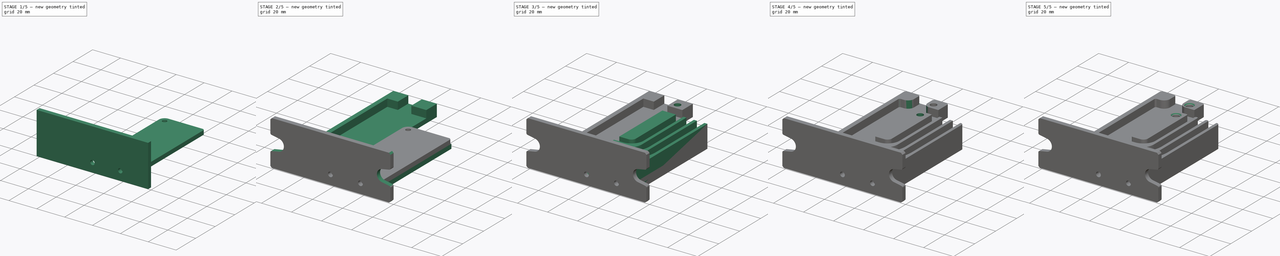
[diagram: build sequence overview — one tinted view per stage of 5, left to right]
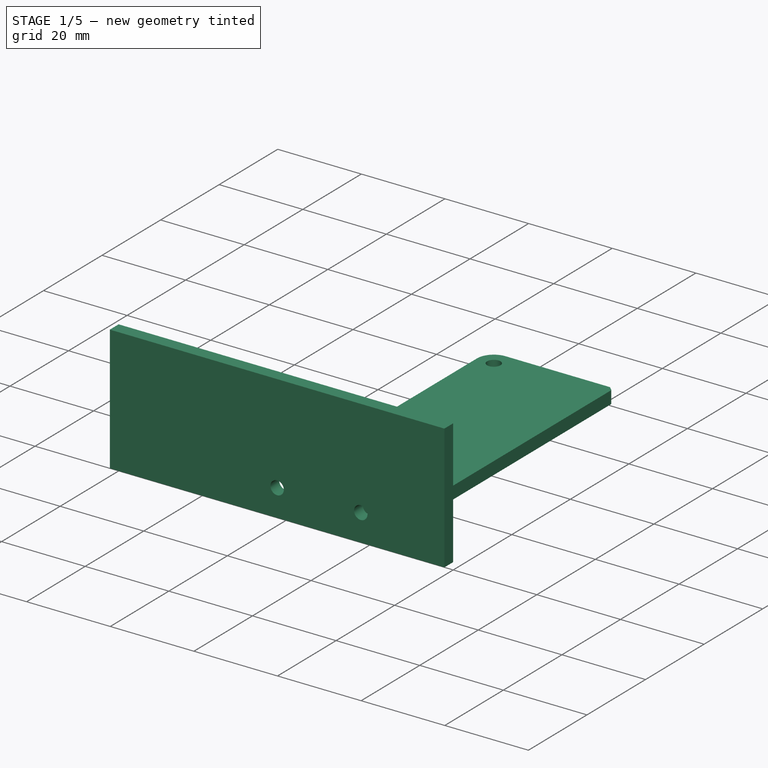
[diagram: stage 1 of 5 — iso view after this stage's code; geometry added in this stage tinted green]
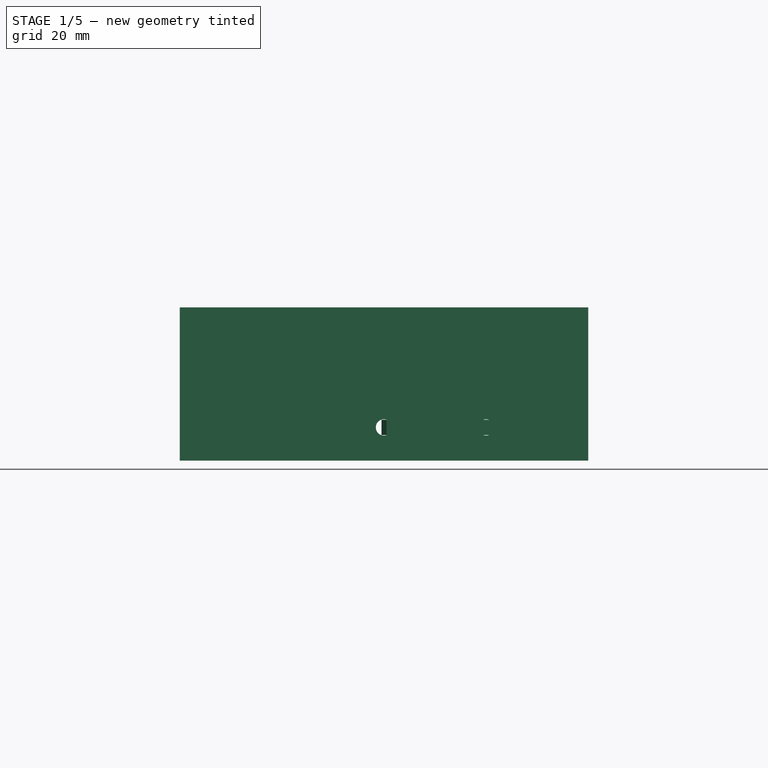
[diagram: stage 1 of 5 — front view after this stage's code; geometry added in this stage tinted green]
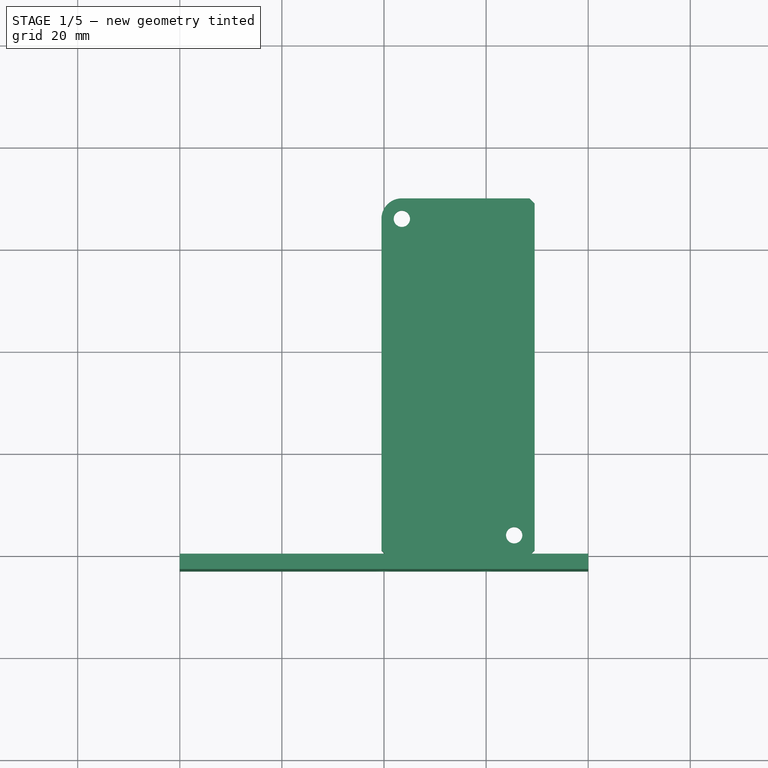
[diagram: stage 1 of 5 — top view after this stage's code; geometry added in this stage tinted green]
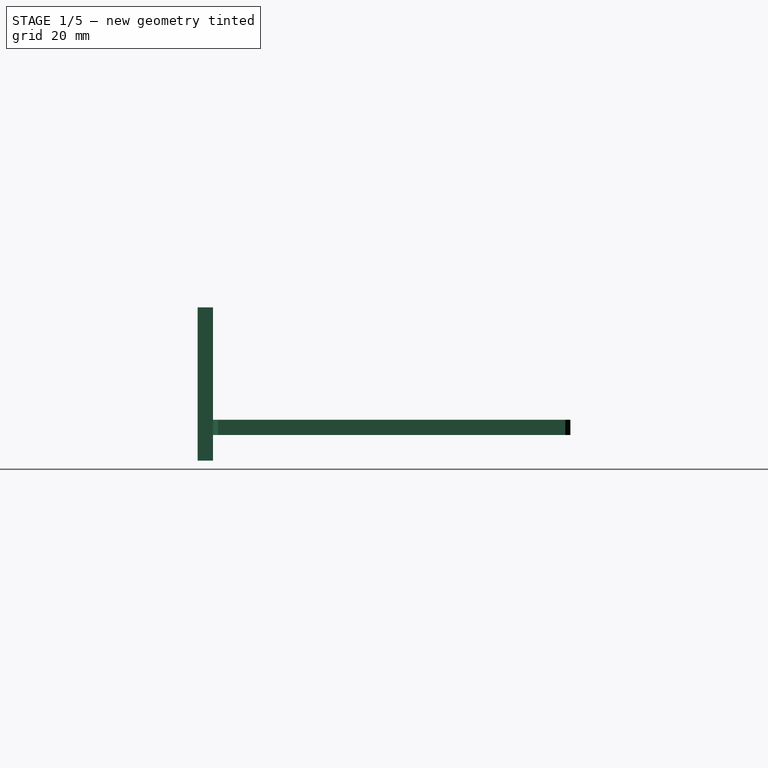
[diagram: stage 1 of 5 — right view after this stage's code; geometry added in this stage tinted green]
FCSTD DOCUMENT  (FreeCAD 2023.1102R14555 (Git shallow))
Label: tiroir_servo
License: All rights reserved
LicenseURL: https://en.wikipedia.org/wiki/All_rights_reserved
objects: Sketcher::SketchObject×10, PartDesign::Pad×6, PartDesign::Chamfer×6, PartDesign::Fillet×6, PartDesign::Pocket×4, PartDesign::Body×3, App::Part×2, Part::SubShapeBinder×2, TechDraw::DrawProjGroupItem×2, TechDraw::DrawProjGroup×2, App::VRMLObject×1, TechDraw::DrawSVGTemplate×1, TechDraw::DrawPage×1
note: 91 computed .brp shape members not serialized (recipe doc carries the construction recipe); baked Part::Feature solids carry a one-line shape summary decoded from their .brp

FEATURE [PartDesign::Body] Body  label="SupportCarte"
  AutoGroupSolids = false
  ClaimAllChildren = false
  ExportMode = 0
  FixShape = 1
  Group = -> [Sketch,Pad,Sketch001,Pad001,Sketch002,Pocket,Sketch003,Pad002,Sketch004,Pocket001,Sketch005,Pad003,Sketch006,Pocket002,Chamfer,Fillet,Fillet001,Chamfer001,Fillet002,Fillet003,Chamfer002,Chamfer003]
  InvalidShape = false
  Origin = -> Origin001
  SingleSolid = true
  Tip = -> Chamfer003
  TreeRank = 26
  ValidateShape = false
  _ExportChildren = -> [Pad,Pad001,Pocket,Pad002,Pocket001,Pad003,Pocket002,Chamfer,Fillet,Fillet001,Chamfer001,Fillet002,Fillet003,Chamfer002,Chamfer003]
  _GroupVersion = 1
FEATURE [Part::SubShapeBinder] Import  label="Import(Chamfer003)"
  BindCopyOnChange = 0
  BindMode = 0
  ClaimChildren = false
  Context = -> Body001 [Import.]
  EdgeTolerance = 1e-06
  FillStyle = 0
  FixShape = 1
  Fuse = false
  InvalidShape = false
  MakeFace = false
  MergeEdges = true
  OffsetFill = false
  OffsetIntersection = false
  OffsetJoinType = 0
  OffsetOpenResult = false
  Outline = false
  PartialLoad = false
  Relative = true
  SplitEdges = false
  Support = -> [Body[Chamfer003.]]
  TightBound = false
  TreeRank = 60
  ValidateShape = false
  _Version = 8
FEATURE [Sketcher::SketchObject] Sketch007
  ArcFitTolerance = 1e-06
  AttachmentSupport = -> [XZ_Plane002]
  ExternalBSplineMaxDegree = 5
  ExternalBSplineTolerance = 0.0001
  ExternalGeometry = -> [Import]
  FixShape = 1
  FullyConstrained = true
  InternalTolerance = 1e-06
  InvalidShape = false
  MakeInternals = false
  MapMode = 5
  Placement = pos=(0,0,0) rot=(1,0,0;1.5708rad)
  Support = -> [XZ_Plane002]
  TreeRank = 59
  ValidateShape = false
  sketch-geometry (7):
    g0: LineSegment StartX=-40 StartY=25 StartZ=0 EndX=-40 EndY=-5 EndZ=0
    g1: LineSegment StartX=-40 StartY=-5 StartZ=0 EndX=40 EndY=-5 EndZ=0
    g2: LineSegment StartX=40 StartY=-5 StartZ=0 EndX=40 EndY=25 EndZ=0
    g3: LineSegment StartX=40 StartY=25 StartZ=0 EndX=-40 EndY=25 EndZ=0
    g4: GeomPoint [constr] X=0 Y=10 Z=0
    g5: Circle CenterX=0 CenterY=1.5 CenterZ=0 NormalX=0 NormalY=0 NormalZ=1 AngleXU=0 Radius=1.6
    g6: Circle CenterX=20 CenterY=1.5 CenterZ=0 NormalX=0 NormalY=0 NormalZ=1 AngleXU=0 Radius=1.6
  constraints (17):
    c: Coincident(g0,g1)
    c: Coincident(g1,g2)
    c: Coincident(g2,g3)
    c: Coincident(g3,g0)
    c: Horizontal(g1)
    c: Horizontal(g3)
    c: Vertical(g0)
    c: Vertical(g2)
    c: Symmetric(g1,g0,g4)
    c: PointOnObject(g4,g-2)
    c: DistanceX(g3,g3) = 80
    c: DistanceY(g2,g2) = 30
    c: DistanceY(g1,g-1) = 5
    c: Coincident(g6,g-4)
    c: Coincident(g5,g-3)
    c: Equal(g5,g6)
    c: Diameter(g5) = 3.2
FEATURE [PartDesign::Pad] Pad004
  AddSubType = 0
  AlongSketchNormal = false
  AutoTaperInnerAngle = true
  CheckUpToFaceLimits = true
  ClaimChildren = false
  Direction = (0,-1,2e-16)
  Fit = 0
  FitJoin = 0
  FixShape = 1
  InnerFit = 0
  InnerFitJoin = 0
  InvalidShape = false
  Length = 3
  Length2 = 10
  Linearize = true
  NewSolid = false
  Profile = -> Sketch007
  ReferenceAxis = -> Sketch007 [N_Axis]
  Refine = true
  Suppress = false
  TaperInnerAngle = 0
  TaperInnerAngleRev = 0
  TreeRank = 61
  Type = 0
  ValidateShape = true
  _ProfileBasedVersion = 1
FEATURE [PartDesign::Body] Body001  label="FrontServo"
  AutoGroupSolids = false
  ClaimAllChildren = false
  ExportMode = 0
  FixShape = 1
  Group = -> [Sketch007,Import,Pad004,Sketch008,Pocket003,Fillet004,Chamfer004]
  InvalidShape = false
  Origin = -> Origin002
  SingleSolid = true
  Tip = -> Chamfer004
  TreeRank = 58
  ValidateShape = false
  _ExportChildren = -> [Import,Pad004,Pocket003,Fillet004,Chamfer004]
  _GroupVersion = 1
FEATURE [Part::SubShapeBinder] Import001  label="Import001(Chamfer003)"
  BindCopyOnChange = 0
  BindMode = 0
  ClaimChildren = false
  Context = -> Body002 [Import001.]
  EdgeTolerance = 1e-06
  FillStyle = 0
  FixShape = 1
  Fuse = false
  InvalidShape = false
  MakeFace = false
  MergeEdges = true
  OffsetFill = false
  OffsetIntersection = false
  OffsetJoinType = 0
  OffsetOpenResult = false
  Outline = false
  PartialLoad = false
  Relative = true
  SplitEdges = false
  Support = -> [Body[Chamfer003.]]
  TightBound = false
  TreeRank = 77
  ValidateShape = false
  _Version = 8
FEATURE [Sketcher::SketchObject] Sketch009
  ArcFitTolerance = 1e-06
  AttachmentSupport = -> [XY_Plane003]
  ExternalBSplineMaxDegree = 5
  ExternalBSplineTolerance = 0.0001
  ExternalGeometry = -> [Import001]
  FixShape = 1
  FullyConstrained = true
  InternalTolerance = 1e-06
  InvalidShape = false
  MakeInternals = false
  MapMode = 5
  Support = -> [XY_Plane003]
  TreeRank = 76
  ValidateShape = false
  sketch-geometry (6):
    g0: LineSegment StartX=-0.5 StartY=0 StartZ=0 EndX=29.5 EndY=0 EndZ=0
    g1: LineSegment StartX=29.5 StartY=0 StartZ=0 EndX=29.5 EndY=70 EndZ=0
    g2: LineSegment StartX=29.5 StartY=70 StartZ=0 EndX=-0.5 EndY=70 EndZ=0
    g3: LineSegment StartX=-0.5 StartY=70 StartZ=0 EndX=-0.5 EndY=0 EndZ=0
    g4: Circle CenterX=3.5 CenterY=66 CenterZ=0 NormalX=0 NormalY=0 NormalZ=1 AngleXU=0 Radius=1.6
    g5: Circle CenterX=25.5 CenterY=4 CenterZ=0 NormalX=0 NormalY=0 NormalZ=1 AngleXU=0 Radius=1.6
  constraints (16):
    c: Coincident(g0,g1)
    c: Coincident(g1,g2)
    c: Coincident(g2,g3)
    c: Coincident(g3,g0)
    c: Horizontal(g0)
    c: Horizontal(g2)
    c: Vertical(g1)
    c: Vertical(g3)
    c: PointOnObject(g0,g-1)
    c: DistanceX(g0,g-1) = 0.5
    c: DistanceX(g0,g0) = 30
    c: DistanceY(g1,g1) = 70
    c: Coincident(g5,g-4)
    c: Coincident(g4,g-3)
    c: Equal(g4,g5)
    c: Diameter(g4) = 3.2
FEATURE [PartDesign::Pad] Pad005
  AddSubType = 0
  AlongSketchNormal = false
  AutoTaperInnerAngle = true
  CheckUpToFaceLimits = true
  ClaimChildren = false
  Direction = (0,0,1)
  Fit = 0
  FitJoin = 0
  FixShape = 1
  InnerFit = 0
  InnerFitJoin = 0
  InvalidShape = false
  Length = 3
  Length2 = 10
  Linearize = true
  NewSolid = false
  Profile = -> Sketch009
  ReferenceAxis = -> Sketch009 [N_Axis]
  Refine = true
  Suppress = false
  TaperInnerAngle = 0
  TaperInnerAngleRev = 0
  TreeRank = 78
  Type = 0
  ValidateShape = true
  _ProfileBasedVersion = 1
FEATURE [PartDesign::Chamfer] Chamfer005
  AddSubType = 0
  Angle = 45
  Base = -> Pad005 [Edge2,Edge5,Edge1]
  BaseFeature = -> Pad005
  ChamferType = 0
  FixShape = 1
  FlipDirection = false
  InvalidShape = false
  NewSolid = false
  Refine = true
  Size = 1
  Size2 = 1
  SupportTransform = false
  Suppress = false
  TreeRank = 79
  UseAllEdges = false
  ValidateShape = true
FEATURE [PartDesign::Fillet] Fillet005
  AddSubType = 0
  Base = -> Chamfer005 [Edge23]
  BaseFeature = -> Chamfer005
  FixShape = 1
  InvalidShape = false
  NewSolid = false
  Radius = 4
  Refine = true
  SupportTransform = false
  Suppress = false
  TreeRank = 80
  UseAllEdges = false
  ValidateShape = true
FEATURE [PartDesign::Body] Body002  label="CapotServo"
  AutoGroupSolids = false
  ClaimAllChildren = false
  ExportMode = 0
  FixShape = 1
  Group = -> [Sketch009,Import001,Pad005,Chamfer005,Fillet005]
  InvalidShape = false
  Origin = -> Origin003
  Placement = pos=(0,0,12) rot=(0,0,1;0rad)
  SingleSolid = true
  Tip = -> Fillet005
  TreeRank = 75
  ValidateShape = false
  _ExportChildren = -> [Import001,Pad005,Chamfer005,Fillet005]
  _GroupVersion = 1
FEATURE [App::Part] Part001  label="tiroir-servo"
  ClaimAllChildren = false
  ExportMode = 1
  Group = -> [Part,Body,Body001,Body002]
  Origin = -> Origin004
  TreeRank = 83
  _ExportChildren = -> [Part,Body,Body001,Body002]
  _GroupVersion = 1
FEATURE [TechDraw::DrawSVGTemplate] Template
  Height = 210
  Orientation = 1
  Template = <path>
  TreeRank = 85
  Width = 297
FEATURE [TechDraw::DrawProjGroupItem] ProjItem  label="Front"
  CoarseView = false
  Direction = (0,-1,0)
  Focus = 100
  HardHidden = false
  IsoCount = 0
  IsoHidden = false
  IsoVisible = false
  LockPosition = true
  Perspective = false
  Rotation = 0
  RotationVector = (1,0,0)
  ScaleType = 2
  ScrubCount = 0
  SeamHidden = false
  SeamVisible = false
  SmoothHidden = false
  SmoothVisible = false
  Source = -> [Chamfer004]
  TreeRank = 88
  Type = 0
  X = 0
  XDirection = (1,0,0)
  Y = 0
FEATURE [TechDraw::DrawProjGroup] ProjGroup
  Anchor = -> ProjItem
  AutoDistribute = true
  LockPosition = false
  ProjectionType = 0
  Rotation = 0
  ScaleType = 0
  Source = -> [Chamfer004]
  TreeRank = 89
  Views = -> [ProjItem]
  X = 41.5432
  Y = 193.065
  spacingX = 15
  spacingY = 15
FEATURE [TechDraw::DrawProjGroupItem] ProjItem001  label="Front001"
  CoarseView = false
  Direction = (0,0,1)
  Focus = 100
  HardHidden = false
  IsoCount = 0
  IsoHidden = false
  IsoVisible = false
  LockPosition = true
  Perspective = false
  Rotation = 0
  RotationVector = (0,1,0)
  ScaleType = 2
  ScrubCount = 0
  SeamHidden = false
  SeamVisible = false
  SmoothHidden = false
  SmoothVisible = false
  Source = -> [Fillet005]
  TreeRank = 91
  Type = 0
  X = 0
  XDirection = (0,1,0)
  Y = 0
FEATURE [TechDraw::DrawProjGroup] ProjGroup001
  Anchor = -> ProjItem001
  AutoDistribute = true
  LockPosition = false
  ProjectionType = 0
  Rotation = 0
  ScaleType = 0
  Source = -> [Fillet005]
  TreeRank = 92
  Views = -> [ProjItem001]
  X = 41.4872
  Y = 161.886
  spacingX = 15
  spacingY = 15
FEATURE [TechDraw::DrawPage] Page  label="Laser3mmCapotServo"
  KeepUpdated = true
  NextBalloonIndex = 1
  ProjectionType = 0
  Template = -> Template
  TreeRank = 86
  Views = -> [ProjGroup,ProjGroup001]
note: 1 file-system path scrubbed to <path> (originals preserved in the JSON sidecar)
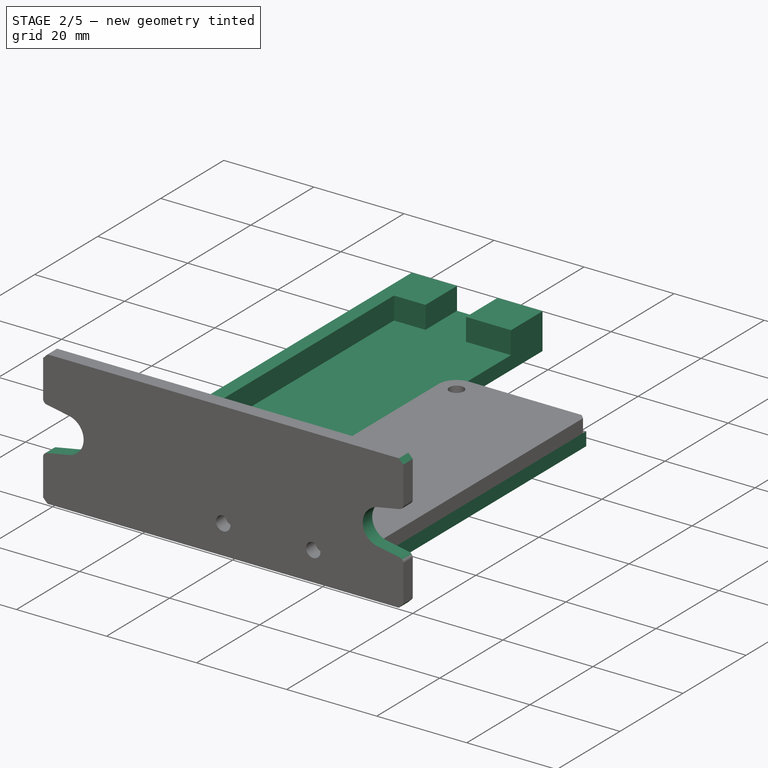
[diagram: stage 2 of 5 — iso view after this stage's code; geometry added in this stage tinted green]
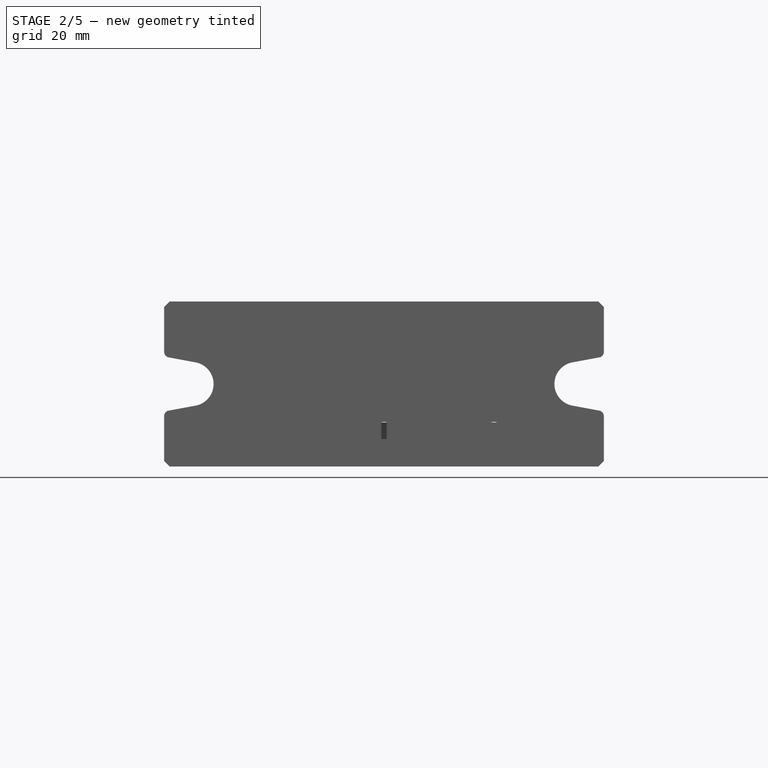
[diagram: stage 2 of 5 — front view after this stage's code; geometry added in this stage tinted green]
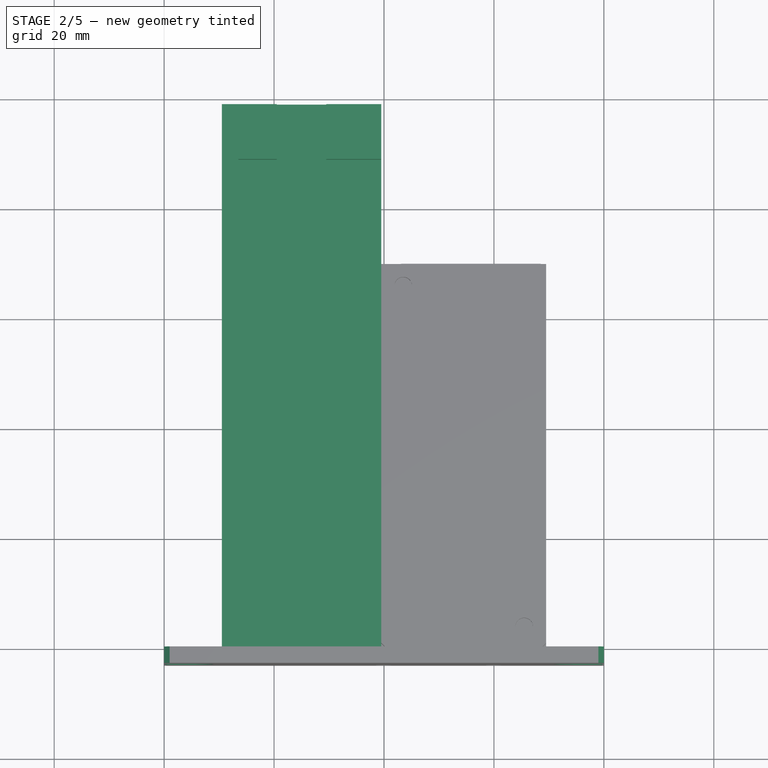
[diagram: stage 2 of 5 — top view after this stage's code; geometry added in this stage tinted green]
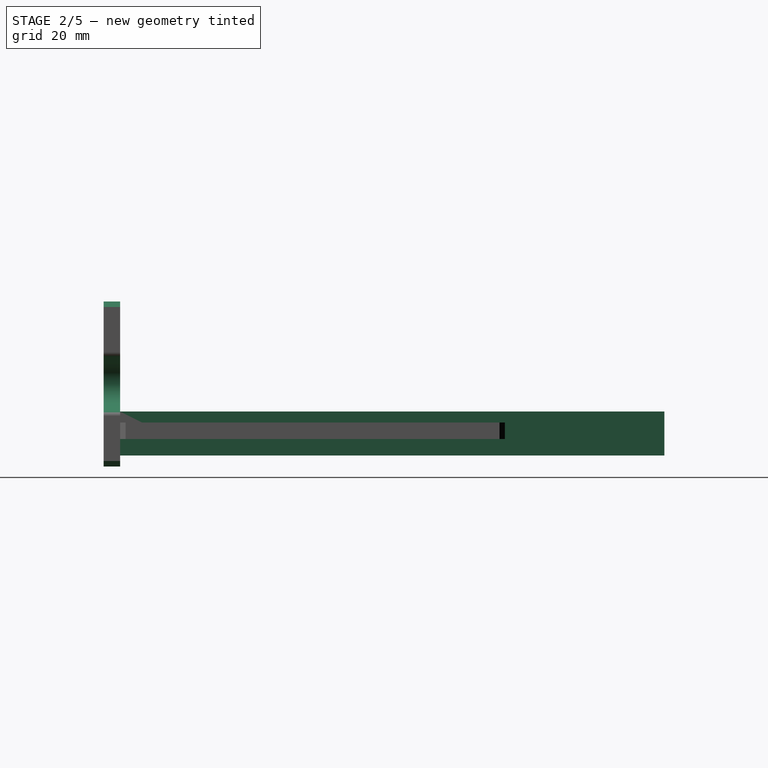
[diagram: stage 2 of 5 — right view after this stage's code; geometry added in this stage tinted green]
FEATURE [App::VRMLObject] SatelliteServo_2023  label="SatelliteServo-2023"
  Resources = SatelliteServo_2023/shapes3D/PinHeader_2x01_P2.54mm_Horizontal.wrl | SatelliteServo_2023/shapes3D/CP_Radial_D8.0mm_P3.80mm.wrl | SatelliteServo_2023/shapes3D/LED_1206_3216Metric.wrl | SatelliteServo_2023/shapes3D/CP_Radial_D10.0mm_P5.00mm.wrl | SatelliteServo_2023/shapes3D/R_1206_3216Metric.wrl | SatelliteServo_2023/shapes3D/CP_Radial_D5.0mm_P2.00mm.wrl | SatelliteServo_2023/shapes3D/IDC-Header_2x05_P2.54mm_Vertical.wrl
  TreeRank = 1
FEATURE [App::Part] Part  label="PCB-Servo"
  ClaimAllChildren = false
  ExportMode = 1
  Group = -> [SatelliteServo_2023]
  Origin = -> Origin
  Placement = pos=(-18.6,53.25,5.8) rot=(0,0,1;0rad)
  TreeRank = 4
  _ExportChildren = -> [SatelliteServo_2023]
  _GroupVersion = 1
FEATURE [Sketcher::SketchObject] Sketch
  ArcFitTolerance = 1e-06
  AttachmentSupport = -> [XY_Plane001]
  ExternalBSplineMaxDegree = 5
  ExternalBSplineTolerance = 0.0001
  FixShape = 1
  FullyConstrained = true
  InternalTolerance = 1e-06
  InvalidShape = false
  MakeInternals = false
  MapMode = 5
  Support = -> [XY_Plane001]
  TreeRank = 27
  ValidateShape = false
  sketch-geometry (9):
    g0: LineSegment [constr] StartX=29.5 StartY=99 StartZ=0 EndX=29.5 EndY=0 EndZ=0
    g1: LineSegment StartX=29.5 StartY=0 StartZ=0 EndX=-29.5 EndY=0 EndZ=0
    g2: LineSegment StartX=-29.5 StartY=0 StartZ=0 EndX=-29.5 EndY=99 EndZ=0
    g3: LineSegment [constr] StartX=-29.5 StartY=99 StartZ=0 EndX=29.5 EndY=99 EndZ=0
    g4: GeomPoint [constr] X=0 Y=49.5 Z=0
    g5: LineSegment StartX=29.5 StartY=70 StartZ=0 EndX=29.5 EndY=0 EndZ=0
    g6: LineSegment StartX=29.5 StartY=70 StartZ=0 EndX=-0.5 EndY=70 EndZ=0
    g7: LineSegment StartX=-0.5 StartY=70 StartZ=0 EndX=-0.5 EndY=99 EndZ=0
    g8: LineSegment StartX=-0.5 StartY=99 StartZ=0 EndX=-29.5 EndY=99 EndZ=0
  constraints (24):
    c: Coincident(g0,g1)
    c: Coincident(g1,g2)
    c: Coincident(g2,g3)
    c: Coincident(g3,g0)
    c: Horizontal(g1)
    c: Horizontal(g3)
    c: Vertical(g0)
    c: Vertical(g2)
    c: Symmetric(g1,g0,g4)
    c: PointOnObject(g4,g-2)
    c: PointOnObject(g1,g-1)
    c: DistanceX(g1,g1) = 59
    c: DistanceY(g2,g2) = 99
    c: PointOnObject(g5,g0)
    c: Coincident(g5,g1)
    c: DistanceY(g5,g5) = 70
    c: Coincident(g6,g5)
    c: Horizontal(g6)
    c: Coincident(g7,g6)
    c: PointOnObject(g7,g3)
    c: Vertical(g7)
    c: Coincident(g8,g7)
    c: Coincident(g8,g2)
    c: DistanceX(g8,g8) = 29
FEATURE [PartDesign::Pad] Pad
  AddSubType = 0
  AlongSketchNormal = false
  AutoTaperInnerAngle = true
  CheckUpToFaceLimits = true
  ClaimChildren = false
  Direction = (0,0,1)
  Fit = 0
  FitJoin = 0
  FixShape = 1
  InnerFit = 0
  InnerFitJoin = 0
  InvalidShape = false
  Length = 3
  Length2 = 10
  Linearize = true
  NewSolid = false
  Profile = -> Sketch
  ReferenceAxis = -> Sketch [N_Axis]
  Refine = true
  Reversed = true
  Suppress = false
  TaperInnerAngle = 0
  TaperInnerAngleRev = 0
  TreeRank = 28
  Type = 0
  ValidateShape = true
  _ProfileBasedVersion = 1
FEATURE [Sketcher::SketchObject] Sketch001
  ArcFitTolerance = 1e-06
  AttachmentSupport = -> [XY_Plane001]
  ExternalBSplineMaxDegree = 5
  ExternalBSplineTolerance = 0.0001
  ExternalGeometry = -> [Pad]
  FixShape = 1
  FullyConstrained = true
  InternalTolerance = 1e-06
  InvalidShape = false
  MakeInternals = false
  MapMode = 5
  Support = -> [XY_Plane001]
  TreeRank = 29
  ValidateShape = false
  sketch-geometry (22):
    g0: LineSegment StartX=-29.5 StartY=0 StartZ=0 EndX=-19.5 EndY=0 EndZ=0
    g1: LineSegment StartX=-19.5 StartY=0 StartZ=0 EndX=-19.5 EndY=10 EndZ=0
    g2: LineSegment [constr] StartX=-19.5 StartY=10 StartZ=0 EndX=-29.5 EndY=10 EndZ=0
    g3: LineSegment StartX=-29.5 StartY=10 StartZ=0 EndX=-29.5 EndY=0 EndZ=0
    g4: LineSegment StartX=-0.5 StartY=99 StartZ=0 EndX=-10.5 EndY=99 EndZ=0
    g5: LineSegment StartX=-10.5 StartY=99 StartZ=0 EndX=-10.5 EndY=89 EndZ=0
    g6: LineSegment StartX=-10.5 StartY=89 StartZ=0 EndX=-0.5 EndY=89 EndZ=0
    g7: LineSegment StartX=-0.5 StartY=89 StartZ=0 EndX=-0.5 EndY=99 EndZ=0
    g8: LineSegment StartX=-10.5 StartY=0 StartZ=0 EndX=-0.5 EndY=0 EndZ=0
    g9: LineSegment StartX=-0.5 StartY=0 StartZ=0 EndX=-0.5 EndY=10 EndZ=0
    g10: LineSegment StartX=-0.5 StartY=10 StartZ=0 EndX=-10.5 EndY=10 EndZ=0
    g11: LineSegment StartX=-10.5 StartY=10 StartZ=0 EndX=-10.5 EndY=0 EndZ=0
    g12: LineSegment StartX=-29.5 StartY=99 StartZ=0 EndX=-19.5 EndY=99 EndZ=0
    g13: LineSegment StartX=-19.5 StartY=99 StartZ=0 EndX=-19.5 EndY=89 EndZ=0
    g14: LineSegment [constr] StartX=-19.5 StartY=89 StartZ=0 EndX=-29.5 EndY=89 EndZ=0
    g15: LineSegment StartX=-29.5 StartY=89 StartZ=0 EndX=-29.5 EndY=99 EndZ=0
    g16: LineSegment [constr] StartX=-29.5 StartY=89 StartZ=0 EndX=-26.5 EndY=89 EndZ=0
    g17: LineSegment StartX=-26.5 StartY=89 StartZ=0 EndX=-26.5 EndY=10 EndZ=0
    g18: LineSegment [constr] StartX=-26.5 StartY=10 StartZ=0 EndX=-29.5 EndY=10 EndZ=0
    g19: LineSegment StartX=-29.5 StartY=10 StartZ=0 EndX=-29.5 EndY=89 EndZ=0
    g20: LineSegment StartX=-26.5 StartY=10 StartZ=0 EndX=-19.5 EndY=10 EndZ=0
    g21: LineSegment StartX=-26.5 StartY=89 StartZ=0 EndX=-19.5 EndY=89 EndZ=0
  constraints (60):
    c: Coincident(g0,g1)
    c: Coincident(g1,g2)
    c: Coincident(g2,g3)
    c: Coincident(g3,g0)
    c: Horizontal(g0)
    c: Horizontal(g2)
    c: Vertical(g1)
    c: Vertical(g3)
    c: Coincident(g0,g-4)
    c: Coincident(g4,g5)
    c: Coincident(g5,g6)
    c: Coincident(g6,g7)
    c: Coincident(g7,g4)
    c: Horizontal(g4)
    c: Horizontal(g6)
    c: Vertical(g5)
    c: Vertical(g7)
    c: Coincident(g4,g-3)
    c: DistanceX(g4,g4) = 10
    c: Equal(g7,g4)
    c: Equal(g1,g2)
    c: Equal(g2,g6)
    c: Coincident(g8,g9)
    c: Coincident(g9,g10)
    c: Coincident(g10,g11)
    c: Coincident(g11,g8)
    c: Horizontal(g8)
    c: Horizontal(g10)
    c: Vertical(g9)
    c: Vertical(g11)
    c: PointOnObject(g8,g-4)
    c: Equal(g11,g1)
    c: Equal(g10,g11)
    c: Coincident(g12,g13)
    c: Coincident(g13,g14)
    c: Coincident(g14,g15)
    c: Coincident(g15,g12)
    c: Horizontal(g12)
    c: Horizontal(g14)
    c: Vertical(g13)
    c: Vertical(g15)
    c: Coincident(g12,g-3)
    c: Equal(g13,g5)
    c: PointOnObject(g9,g7)
    c: Equal(g12,g4)
    c: Coincident(g16,g17)
    c: Coincident(g17,g18)
    c: Coincident(g18,g19)
    c: Coincident(g19,g16)
    c: Horizontal(g16)
    c: Horizontal(g18)
    c: Vertical(g17)
    c: Vertical(g19)
    c: Coincident(g16,g14)
    c: PointOnObject(g17,g2)
    c: Coincident(g20,g17)
    c: Coincident(g20,g1)
    c: Coincident(g21,g17)
    c: Coincident(g21,g13)
    c: DistanceX(g15,g17) = 3
FEATURE [PartDesign::Pad] Pad001
  AddSubType = 0
  AlongSketchNormal = false
  AutoTaperInnerAngle = true
  BaseFeature = -> Pad
  CheckUpToFaceLimits = true
  ClaimChildren = false
  Direction = (0,0,1)
  Fit = 0
  FitJoin = 0
  FixShape = 1
  InnerFit = 0
  InnerFitJoin = 0
  InvalidShape = false
  Length = 5
  Length2 = 10
  Linearize = true
  NewSolid = false
  Profile = -> Sketch001
  ReferenceAxis = -> Sketch001 [N_Axis]
  Refine = true
  Suppress = false
  TaperInnerAngle = 0
  TaperInnerAngleRev = 0
  TreeRank = 30
  Type = 0
  ValidateShape = true
  _ProfileBasedVersion = 1
FEATURE [Sketcher::SketchObject] Sketch008
  ArcFitTolerance = 1e-06
  AttachmentSupport = -> [XZ_Plane002]
  ExternalBSplineMaxDegree = 5
  ExternalBSplineTolerance = 0.0001
  ExternalGeometry = -> [Pad004]
  FixShape = 1
  FullyConstrained = true
  InternalTolerance = 1e-06
  InvalidShape = false
  MakeInternals = false
  MapMode = 5
  Placement = pos=(0,0,0) rot=(1,0,0;1.5708rad)
  Support = -> [XZ_Plane002]
  TreeRank = 62
  ValidateShape = false
  sketch-geometry (9):
    g0: ArcOfCircle CenterX=-35 CenterY=10 CenterZ=0 NormalX=0 NormalY=0 NormalZ=1 AngleXU=0 Radius=4 StartAngle=4.89652 EndAngle=7.66985
    g1: ArcOfCircle CenterX=-40.9312 CenterY=10 CenterZ=0 NormalX=0 NormalY=0 NormalZ=1 AngleXU=0 Radius=5.08598 StartAngle=1.38666 EndAngle=4.89652
    g2: LineSegment StartX=-34.2676 StartY=13.9324 StartZ=0 EndX=-40 EndY=15 EndZ=0
    g3: LineSegment StartX=-40 StartY=5 StartZ=0 EndX=-34.2676 EndY=6.06762 EndZ=0
    g4: ArcOfCircle CenterX=35 CenterY=10 CenterZ=0 NormalX=0 NormalY=0 NormalZ=1 AngleXU=0 Radius=4 StartAngle=1.75493 EndAngle=4.52826
    g5: ArcOfCircle CenterX=40.9312 CenterY=10 CenterZ=0 NormalX=0 NormalY=0 NormalZ=1 AngleXU=0 Radius=5.08598 StartAngle=4.52826 EndAngle=8.03812
    g6: LineSegment StartX=34.2676 StartY=6.06762 StartZ=0 EndX=40 EndY=5 EndZ=0
    g7: LineSegment StartX=40 StartY=15 StartZ=0 EndX=34.2676 EndY=13.9324 EndZ=0
    g8: GeomPoint [constr] X=40 Y=10 Z=0
  constraints (20):
    c: Tangent(g0,g2) = -1.5708
    c: Tangent(g2,g1) = -1.5708
    c: Tangent(g1,g3) = -1.5708
    c: Tangent(g3,g0) = -1.5708
    c: Tangent(g4,g6) = -1.5708
    c: Tangent(g6,g5) = -1.5708
    c: Tangent(g5,g7) = -1.5708
    c: Tangent(g7,g4) = -1.5708
    c: Symmetric(g4,g0,g-2)
    c: Horizontal(g1,g0)
    c: Horizontal(g5,g4)
    c: PointOnObject(g1,g-4)
    c: DistanceY(g1,g1) = 10
    c: Radius(g0) = 4
    c: Radius(g4) = 4
    c: PointOnObject(g5,g-3)
    c: DistanceY(g5,g5) = 10
    c: DistanceX(g-4,g0) = 5
    c: Horizontal(g5,g8)
    c: Symmetric(g-3,g-3,g8)
FEATURE [PartDesign::Pocket] Pocket003
  AddSubType = 1
  AlongSketchNormal = false
  AutoTaperInnerAngle = true
  BaseFeature = -> Pad004
  CheckUpToFaceLimits = true
  ClaimChildren = false
  Direction = (0,1,-2e-16)
  Fit = 0
  FitJoin = 0
  FixShape = 1
  InnerFit = 0
  InnerFitJoin = 0
  InvalidShape = false
  Length = 5
  Length2 = 10
  Linearize = true
  NewSolid = false
  Profile = -> Sketch008
  ReferenceAxis = -> Sketch008 [N_Axis]
  Refine = true
  Reversed = true
  Suppress = false
  TaperInnerAngle = 0
  TaperInnerAngleRev = 0
  TreeRank = 63
  Type = 0
  ValidateShape = true
  _ProfileBasedVersion = 1
  _Version = 1
FEATURE [PartDesign::Fillet] Fillet004
  AddSubType = 0
  Base = -> Pocket003 [Edge34,Edge2,Edge37,Edge40]
  BaseFeature = -> Pocket003
  FixShape = 1
  InvalidShape = false
  NewSolid = false
  Radius = 1
  Refine = true
  SupportTransform = false
  Suppress = false
  TreeRank = 64
  UseAllEdges = false
  ValidateShape = true
FEATURE [PartDesign::Chamfer] Chamfer004
  AddSubType = 0
  Angle = 45
  Base = -> Fillet004 [Edge3,Edge49,Edge51,Edge24]
  BaseFeature = -> Fillet004
  ChamferType = 0
  FixShape = 1
  FlipDirection = false
  InvalidShape = false
  NewSolid = false
  Refine = true
  Size = 1
  Size2 = 1
  SupportTransform = false
  Suppress = false
  TreeRank = 65
  UseAllEdges = false
  ValidateShape = true
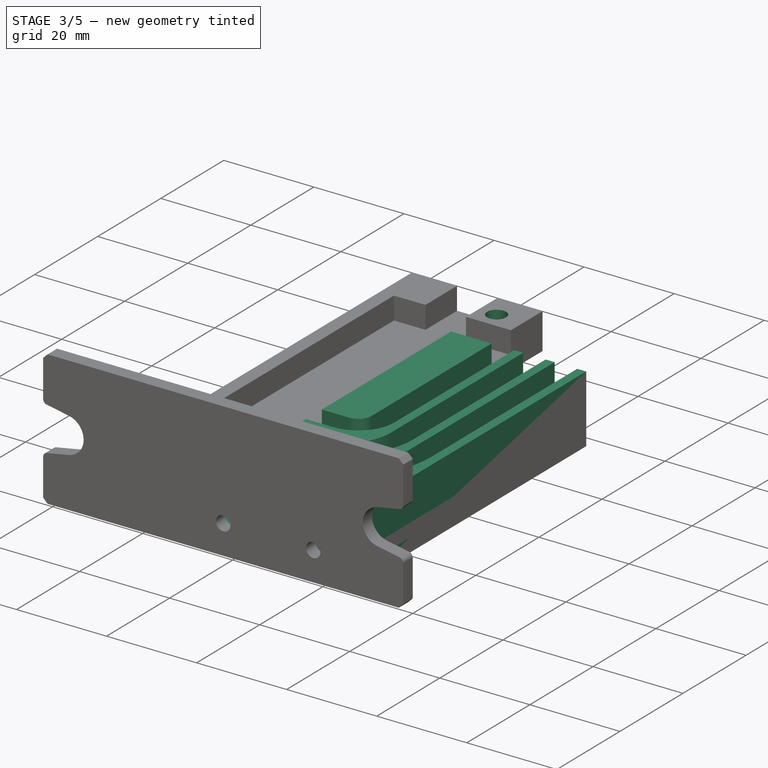
[diagram: stage 3 of 5 — iso view after this stage's code; geometry added in this stage tinted green]
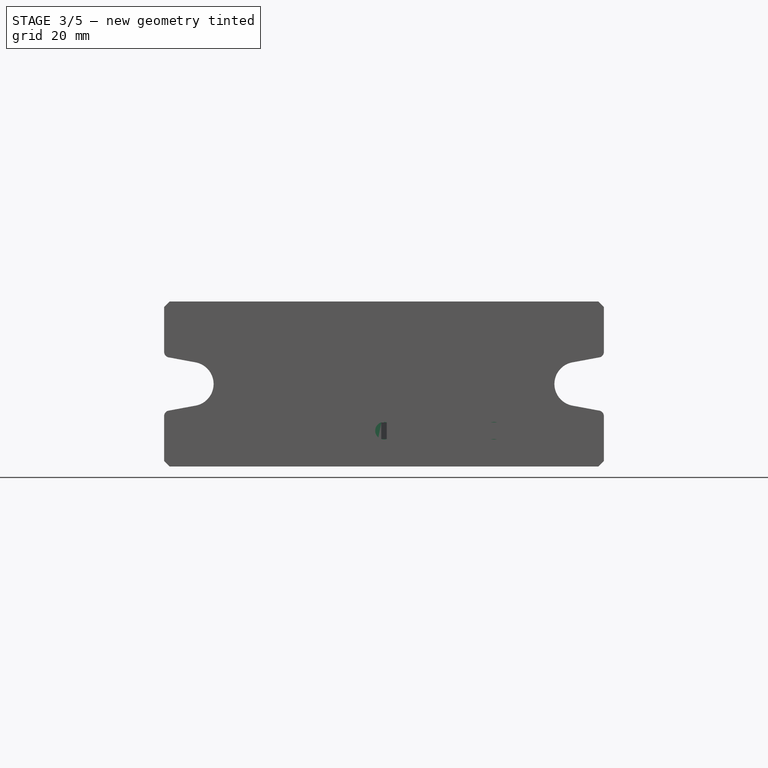
[diagram: stage 3 of 5 — front view after this stage's code; geometry added in this stage tinted green]
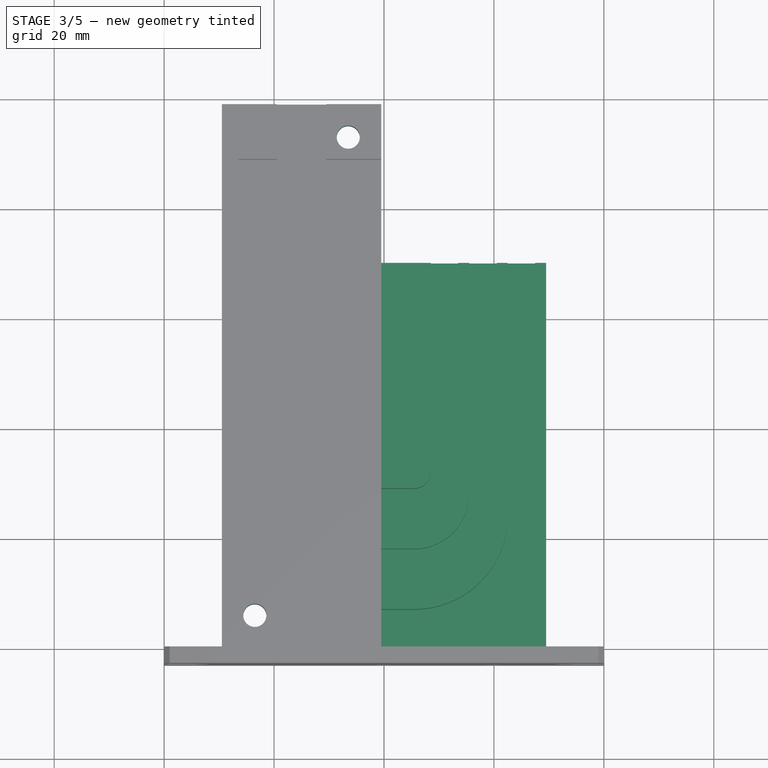
[diagram: stage 3 of 5 — top view after this stage's code; geometry added in this stage tinted green]
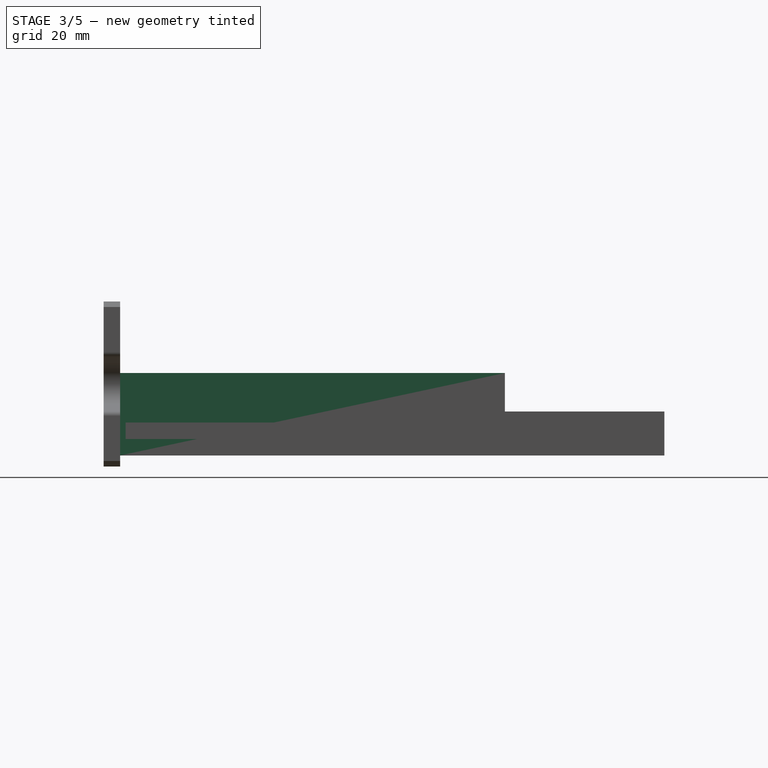
[diagram: stage 3 of 5 — right view after this stage's code; geometry added in this stage tinted green]
FEATURE [Sketcher::SketchObject] Sketch002
  ArcFitTolerance = 1e-06
  AttachmentSupport = -> [Pad001]
  ExternalBSplineMaxDegree = 5
  ExternalBSplineTolerance = 0.0001
  ExternalGeometry = -> [Pad001]
  FixShape = 1
  FullyConstrained = true
  InternalTolerance = 1e-06
  InvalidShape = false
  MakeInternals = false
  MapMode = 5
  Placement = pos=(0,0,5) rot=(0,0,1;0rad)
  Support = -> [Pad001]
  TreeRank = 31
  ValidateShape = false
  sketch-geometry (4):
    g0: Circle [constr] CenterX=-23.5 CenterY=6 CenterZ=0 NormalX=0 NormalY=0 NormalZ=1 AngleXU=0 Radius=4
    g1: Circle [constr] CenterX=-6.5 CenterY=93 CenterZ=0 NormalX=0 NormalY=0 NormalZ=1 AngleXU=0 Radius=4
    g2: Circle CenterX=-6.5 CenterY=93 CenterZ=0 NormalX=0 NormalY=0 NormalZ=1 AngleXU=0 Radius=2.1
    g3: Circle CenterX=-23.5 CenterY=6 CenterZ=0 NormalX=0 NormalY=0 NormalZ=1 AngleXU=0 Radius=2.1
  constraints (10):
    c: Tangent(g1,g-4)
    c: Tangent(g1,g-5)
    c: Tangent(g0,g-3)
    c: Equal(g0,g1)
    c: Diameter(g0) = 8
    c: Coincident(g2,g1)
    c: Coincident(g3,g0)
    c: Equal(g3,g2)
    c: Diameter(g3) = 4.2
    c: Tangent(g0,g-6)
FEATURE [PartDesign::Pocket] Pocket
  AddSubType = 1
  AlongSketchNormal = false
  AutoTaperInnerAngle = true
  BaseFeature = -> Pad001
  CheckUpToFaceLimits = true
  ClaimChildren = false
  Direction = (0,0,-1)
  Fit = 0
  FitJoin = 0
  FixShape = 1
  InnerFit = 0
  InnerFitJoin = 0
  InvalidShape = false
  Length = 5
  Length2 = 10
  Linearize = true
  NewSolid = false
  Profile = -> Sketch002
  ReferenceAxis = -> Sketch002 [N_Axis]
  Refine = true
  Suppress = false
  TaperInnerAngle = 0
  TaperInnerAngleRev = 0
  TreeRank = 32
  Type = 1
  ValidateShape = true
  _ProfileBasedVersion = 1
  _Version = 1
FEATURE [Sketcher::SketchObject] Sketch003
  ArcFitTolerance = 1e-06
  AttachmentSupport = -> [XY_Plane001]
  ExternalBSplineMaxDegree = 5
  ExternalBSplineTolerance = 0.0001
  ExternalGeometry = -> [Pocket]
  FixShape = 1
  FullyConstrained = true
  InternalTolerance = 1e-06
  InvalidShape = false
  MakeInternals = false
  MapMode = 5
  Support = -> [XY_Plane001]
  TreeRank = 33
  ValidateShape = false
  sketch-geometry (4):
    g0: LineSegment StartX=29.5 StartY=0 StartZ=0 EndX=-0.5 EndY=0 EndZ=0
    g1: LineSegment StartX=-0.5 StartY=0 StartZ=0 EndX=-0.5 EndY=70 EndZ=0
    g2: LineSegment StartX=-0.5 StartY=70 StartZ=0 EndX=29.5 EndY=70 EndZ=0
    g3: LineSegment StartX=29.5 StartY=70 StartZ=0 EndX=29.5 EndY=0 EndZ=0
  constraints (10):
    c: Coincident(g0,g1)
    c: Coincident(g1,g2)
    c: Coincident(g2,g3)
    c: Coincident(g3,g0)
    c: Horizontal(g0)
    c: Horizontal(g2)
    c: Vertical(g1)
    c: Vertical(g3)
    c: Coincident(g0,g-4)
    c: Coincident(g1,g-3)
FEATURE [PartDesign::Pad] Pad002
  AddSubType = 0
  AlongSketchNormal = false
  AutoTaperInnerAngle = true
  BaseFeature = -> Pocket
  CheckUpToFaceLimits = true
  ClaimChildren = false
  Direction = (0,0,1)
  Fit = 0
  FitJoin = 0
  FixShape = 1
  InnerFit = 0
  InnerFitJoin = 0
  InvalidShape = false
  Length = 6
  Length2 = 10
  Linearize = true
  NewSolid = false
  Profile = -> Sketch003
  ReferenceAxis = -> Sketch003 [N_Axis]
  Refine = true
  Suppress = false
  TaperInnerAngle = 0
  TaperInnerAngleRev = 0
  TreeRank = 34
  Type = 0
  ValidateShape = true
  _ProfileBasedVersion = 1
FEATURE [Sketcher::SketchObject] Sketch004
  ArcFitTolerance = 1e-06
  AttachmentSupport = -> [XZ_Plane001]
  ExternalBSplineMaxDegree = 5
  ExternalBSplineTolerance = 0.0001
  ExternalGeometry = -> [Pad002]
  FixShape = 1
  FullyConstrained = true
  InternalTolerance = 1e-06
  InvalidShape = false
  MakeInternals = false
  MapMode = 5
  Placement = pos=(0,0,0) rot=(1,0,0;1.5708rad)
  Support = -> [XZ_Plane001]
  TreeRank = 35
  ValidateShape = false
  sketch-geometry (3):
    g0: Circle CenterX=0 CenterY=1.5 CenterZ=0 NormalX=0 NormalY=0 NormalZ=1 AngleXU=0 Radius=2.1
    g1: Circle CenterX=20 CenterY=1.5 CenterZ=0 NormalX=0 NormalY=0 NormalZ=1 AngleXU=0 Radius=2.1
    g2: LineSegment [constr] StartX=29.5 StartY=1.5 StartZ=0 EndX=0 EndY=1.5 EndZ=0
  constraints (8):
    c: Equal(g0,g1)
    c: Diameter(g0) = 4.2
    c: Horizontal(g0,g1)
    c: DistanceX(g0,g1) = 20
    c: Coincident(g2,g0)
    c: Horizontal(g2)
    c: Symmetric(g-3,g-3,g2)
    c: PointOnObject(g0,g-2)
FEATURE [PartDesign::Pocket] Pocket001
  AddSubType = 1
  AlongSketchNormal = false
  AutoTaperInnerAngle = true
  BaseFeature = -> Pad002
  CheckUpToFaceLimits = true
  ClaimChildren = false
  Direction = (0,1,-2e-16)
  Fit = 0
  FitJoin = 0
  FixShape = 1
  InnerFit = 0
  InnerFitJoin = 0
  InvalidShape = false
  Length = 9
  Length2 = 10
  Linearize = true
  NewSolid = false
  Profile = -> Sketch004
  ReferenceAxis = -> Sketch004 [N_Axis]
  Refine = true
  Suppress = false
  TaperInnerAngle = 0
  TaperInnerAngleRev = 0
  TreeRank = 36
  Type = 0
  ValidateShape = true
  _ProfileBasedVersion = 1
  _Version = 1
FEATURE [Sketcher::SketchObject] Sketch005
  ArcFitTolerance = 1e-06
  AttachmentSupport = -> [Pocket001]
  ExternalBSplineMaxDegree = 5
  ExternalBSplineTolerance = 0.0001
  ExternalGeometry = -> [Pocket001]
  FixShape = 1
  FullyConstrained = true
  InternalTolerance = 1e-06
  InvalidShape = false
  MakeInternals = false
  MapMode = 5
  Placement = pos=(0,0,6) rot=(0,0,1;0rad)
  Support = -> [Pocket001]
  TreeRank = 37
  ValidateShape = false
  sketch-geometry (27):
    g0: LineSegment StartX=-0.5 StartY=0 StartZ=0 EndX=29.5 EndY=0 EndZ=0
    g1: ArcOfCircle CenterX=5.5 CenterY=24 CenterZ=0 NormalX=0 NormalY=0 NormalZ=1 AngleXU=0 Radius=22 StartAngle=4.71239 EndAngle=6.28319
    g2: LineSegment StartX=27.5 StartY=24 StartZ=0 EndX=27.5 EndY=70 EndZ=0
    g3: LineSegment StartX=27.5 StartY=70 StartZ=0 EndX=29.5 EndY=70 EndZ=0
    g4: LineSegment StartX=5.5 StartY=2 StartZ=0 EndX=-0.5 EndY=2 EndZ=0
    g5: LineSegment StartX=-0.5 StartY=2 StartZ=0 EndX=-0.5 EndY=0 EndZ=0
    g6: LineSegment StartX=-0.5 StartY=7 StartZ=0 EndX=5.5 EndY=7 EndZ=0
    g7: ArcOfCircle CenterX=5.5 CenterY=24 CenterZ=0 NormalX=0 NormalY=0 NormalZ=1 AngleXU=0 Radius=17 StartAngle=4.71239 EndAngle=6.28319
    g8: LineSegment StartX=22.5 StartY=24 StartZ=0 EndX=22.5 EndY=70 EndZ=0
    g9: LineSegment StartX=22.5 StartY=70 StartZ=0 EndX=20.5 EndY=70 EndZ=0
    g10: LineSegment StartX=20.5 StartY=70 StartZ=0 EndX=20.5 EndY=28 EndZ=0
    g11: LineSegment StartX=5.5 StartY=13 StartZ=0 EndX=-0.5 EndY=13 EndZ=0
    g12: LineSegment StartX=-0.5 StartY=7 StartZ=0 EndX=-0.5 EndY=13 EndZ=0
    g13: ArcOfCircle CenterX=5.5 CenterY=28 CenterZ=0 NormalX=0 NormalY=0 NormalZ=1 AngleXU=0 Radius=15 StartAngle=4.71239 EndAngle=6.28319
    g14: ArcOfCircle CenterX=5.5 CenterY=28 CenterZ=0 NormalX=0 NormalY=0 NormalZ=1 AngleXU=0 Radius=10 StartAngle=4.71239 EndAngle=6.28319
    g15: LineSegment StartX=15.5 StartY=28 StartZ=0 EndX=15.5 EndY=70 EndZ=0
    g16: LineSegment StartX=5.5 StartY=18 StartZ=0 EndX=-0.5 EndY=18 EndZ=0
    g17: LineSegment StartX=15.5 StartY=70 StartZ=0 EndX=13.5 EndY=70 EndZ=0
    g18: LineSegment StartX=13.5 StartY=70 StartZ=0 EndX=13.5 EndY=32 EndZ=0
    g19: LineSegment StartX=-0.5 StartY=24 StartZ=0 EndX=5.5 EndY=24 EndZ=0
    g20: ArcOfCircle CenterX=5.5 CenterY=32 CenterZ=0 NormalX=0 NormalY=0 NormalZ=1 AngleXU=0 Radius=8 StartAngle=4.71239 EndAngle=6.28319
    g21: LineSegment StartX=-0.5 StartY=70 StartZ=0 EndX=8.5 EndY=70 EndZ=0
    g22: LineSegment StartX=8.5 StartY=70 StartZ=0 EndX=8.5 EndY=32 EndZ=0
    g23: LineSegment StartX=-0.5 StartY=70 StartZ=0 EndX=-0.5 EndY=29 EndZ=0
    g24: ArcOfCircle CenterX=5.5 CenterY=32 CenterZ=0 NormalX=0 NormalY=0 NormalZ=1 AngleXU=0 Radius=3 StartAngle=4.71239 EndAngle=6.28319
    g25: LineSegment StartX=-0.5 StartY=29 StartZ=0 EndX=5.5 EndY=29 EndZ=0
    g26: LineSegment StartX=-0.5 StartY=24 StartZ=0 EndX=-0.5 EndY=18 EndZ=0
  constraints (69):
    c: Coincident(g0,g-3)
    c: Coincident(g0,g-4)
    c: Vertical(g2)
    c: Coincident(g3,g2)
    c: Coincident(g3,g-4)
    c: Horizontal(g3)
    c: Tangent(g2,g1) = -1.5708
    c: PointOnObject(g4,g-3)
    c: Horizontal(g4)
    c: Coincident(g5,g4)
    c: Coincident(g5,g0)
    c: DistanceY(g5,g5) = 2
    c: Tangent(g4,g1) = 1.5708
    c: PointOnObject(g6,g-3)
    c: Horizontal(g6)
    c: Coincident(g7,g1)
    c: Vertical(g8)
    c: Tangent(g8,g7) = -1.5708
    c: Tangent(g7,g6) = -1.5708
    c: DistanceY(g4,g6) = 5
    c: PointOnObject(g8,g3)
    c: Coincident(g9,g8)
    c: Horizontal(g9)
    c: Coincident(g10,g9)
    c: Vertical(g10)
    c: PointOnObject(g11,g-3)
    c: Horizontal(g11)
    c: Coincident(g12,g6)
    c: Coincident(g12,g11)
    c: Tangent(g13,g11) = 1.5708
    c: Tangent(g13,g10) = 1.5708
    c: Coincident(g14,g13)
    c: Vertical(g15)
    c: PointOnObject(g16,g-3)
    c: Horizontal(g16)
    c: Tangent(g16,g14) = 1.5708
    c: Tangent(g15,g14) = -1.5708
    c: PointOnObject(g15,g9)
    c: DistanceX(g15,g9) = 5
    c: Coincident(g17,g15)
    c: Horizontal(g17)
    c: Coincident(g18,g17)
    c: Vertical(g18)
    c: PointOnObject(g19,g-3)
    c: Horizontal(g19)
    c: Tangent(g20,g18) = 1.5708
    c: Tangent(g20,g19) = -1.5708
    c: Coincident(g21,g-3)
    c: Horizontal(g21)
    c: Coincident(g22,g21)
    c: Vertical(g22)
    c: Coincident(g23,g21)
    c: PointOnObject(g23,g-3)
    c: DistanceX(g21,g17) = 5
    c: Coincident(g25,g23)
    c: Horizontal(g25)
    c: Tangent(g25,g24) = -1.5708
    c: Tangent(g24,g22) = 1.5708
    c: Equal(g17,g9)
    c: Coincident(g20,g24)
    c: DistanceY(g-1,g19) = 24
    c: Radius(g20) = 8
    c: Coincident(g26,g19)
    c: Coincident(g26,g16)
    c: Equal(g26,g12)
    c: Vertical(g14,g19)
    c: Vertical(g6,g11)
    c: DistanceX(g3,g3) = 2
    c: DistanceX(g9,g9) = 2
FEATURE [PartDesign::Pad] Pad003
  AddSubType = 0
  AlongSketchNormal = false
  AutoTaperInnerAngle = true
  BaseFeature = -> Pocket001
  CheckUpToFaceLimits = true
  ClaimChildren = false
  Direction = (0,0,1)
  Fit = 0
  FitJoin = 0
  FixShape = 1
  InnerFit = 0
  InnerFitJoin = 0
  InvalidShape = false
  Length = 6
  Length2 = 10
  Linearize = true
  NewSolid = false
  Profile = -> Sketch005
  ReferenceAxis = -> Sketch005 [N_Axis]
  Refine = true
  Suppress = false
  TaperInnerAngle = 0
  TaperInnerAngleRev = 0
  TreeRank = 38
  Type = 0
  ValidateShape = true
  _ProfileBasedVersion = 1
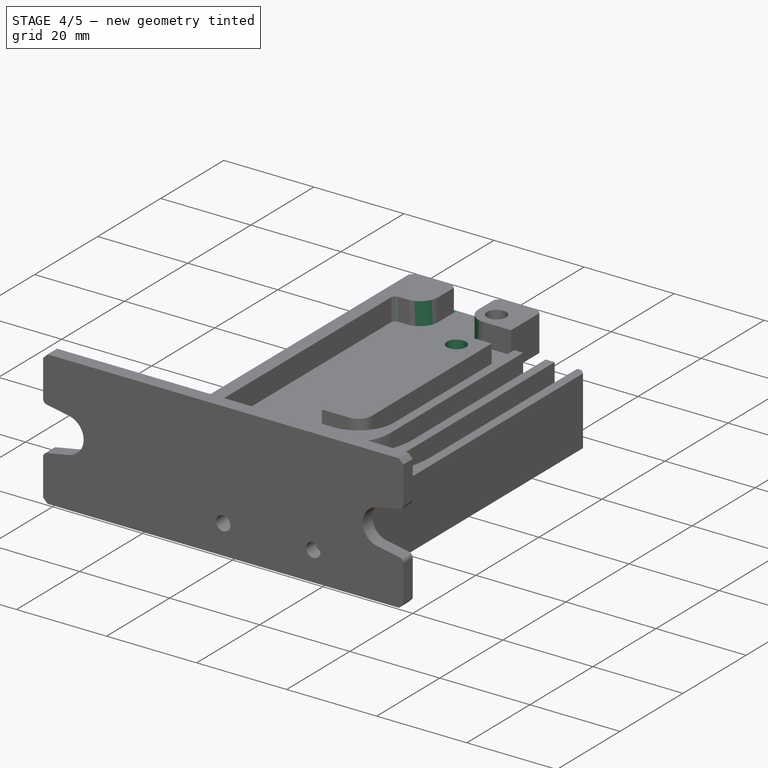
[diagram: stage 4 of 5 — iso view after this stage's code; geometry added in this stage tinted green]
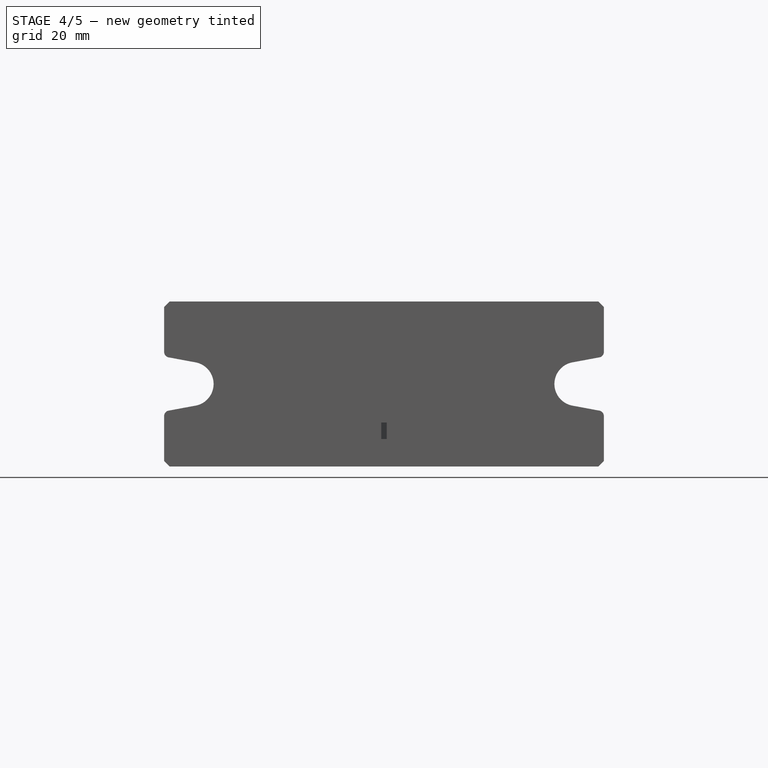
[diagram: stage 4 of 5 — front view after this stage's code; geometry added in this stage tinted green]
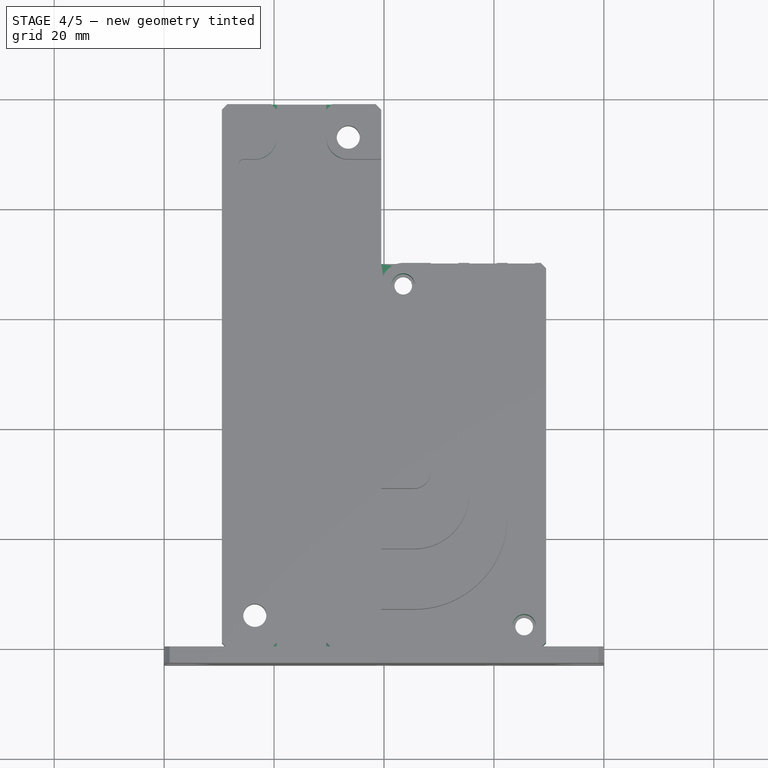
[diagram: stage 4 of 5 — top view after this stage's code; geometry added in this stage tinted green]
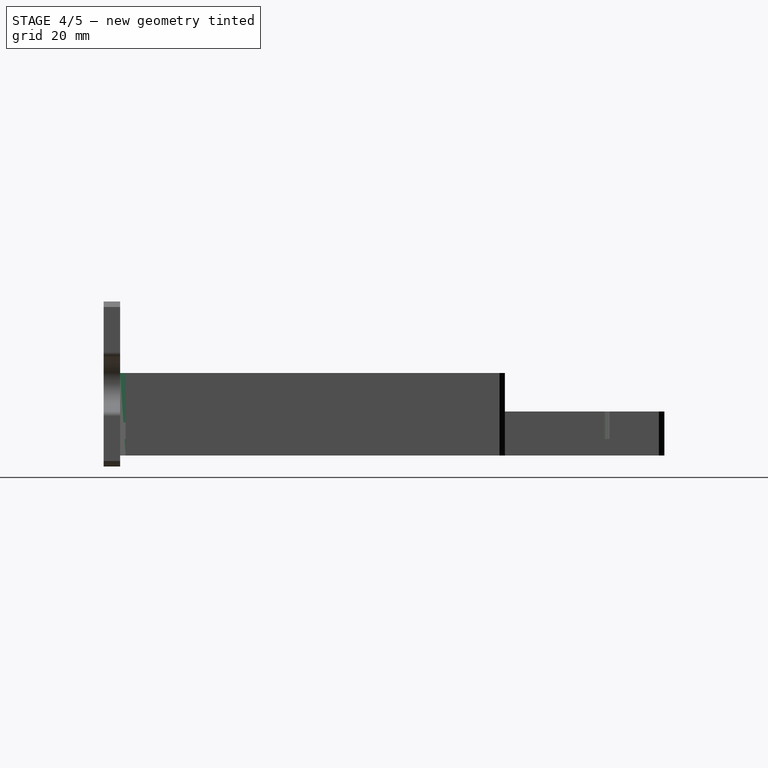
[diagram: stage 4 of 5 — right view after this stage's code; geometry added in this stage tinted green]
FEATURE [Sketcher::SketchObject] Sketch006
  ArcFitTolerance = 1e-06
  AttachmentSupport = -> [Pad003]
  ExternalBSplineMaxDegree = 5
  ExternalBSplineTolerance = 0.0001
  ExternalGeometry = -> [Pad003]
  FixShape = 1
  FullyConstrained = true
  InternalTolerance = 1e-06
  InvalidShape = false
  MakeInternals = false
  MapMode = 5
  Placement = pos=(0,0,-3) rot=(1,0,0;3.14159rad)
  Support = -> [Pad003]
  TreeRank = 39
  ValidateShape = false
  sketch-geometry (4):
    g0: Circle [constr] CenterX=3.5 CenterY=-66 CenterZ=0 NormalX=0 NormalY=0 NormalZ=1 AngleXU=0 Radius=4
    g1: Circle [constr] CenterX=25.5 CenterY=-4 CenterZ=0 NormalX=0 NormalY=0 NormalZ=1 AngleXU=0 Radius=4
    g2: Circle CenterX=3.5 CenterY=-66 CenterZ=0 NormalX=0 NormalY=0 NormalZ=1 AngleXU=0 Radius=2.1
    g3: Circle CenterX=25.5 CenterY=-4 CenterZ=0 NormalX=0 NormalY=0 NormalZ=1 AngleXU=0 Radius=2.1
  constraints (10):
    c: Tangent(g0,g-3)
    c: Tangent(g0,g-4)
    c: Tangent(g1,g-6)
    c: Tangent(g1,g-5)
    c: Equal(g1,g0)
    c: Diameter(g1) = 8
    c: Coincident(g2,g0)
    c: Coincident(g3,g1)
    c: Equal(g2,g3)
    c: Diameter(g2) = 4.2
FEATURE [PartDesign::Pocket] Pocket002
  AddSubType = 1
  AlongSketchNormal = false
  AutoTaperInnerAngle = true
  BaseFeature = -> Pad003
  CheckUpToFaceLimits = true
  ClaimChildren = false
  Direction = (0,0,1)
  Fit = 0
  FitJoin = 0
  FixShape = 1
  InnerFit = 0
  InnerFitJoin = 0
  InvalidShape = false
  Length = 5
  Length2 = 10
  Linearize = true
  NewSolid = false
  Profile = -> Sketch006
  ReferenceAxis = -> Sketch006 [N_Axis]
  Refine = true
  Suppress = false
  TaperInnerAngle = 0
  TaperInnerAngleRev = 0
  TreeRank = 40
  Type = 1
  ValidateShape = true
  _ProfileBasedVersion = 1
  _Version = 1
FEATURE [PartDesign::Chamfer] Chamfer
  AddSubType = 0
  Angle = 45
  Base = -> Pocket002 [Edge54,Edge60,Edge131,Edge115,Edge32]
  BaseFeature = -> Pocket002
  ChamferType = 0
  FixShape = 1
  FlipDirection = false
  InvalidShape = false
  NewSolid = false
  Refine = true
  Size = 1
  Size2 = 1
  SupportTransform = false
  Suppress = false
  TreeRank = 41
  UseAllEdges = false
  ValidateShape = true
FEATURE [PartDesign::Fillet] Fillet
  AddSubType = 0
  Base = -> Chamfer [Edge157,Edge142,Edge162,Edge151,Edge5]
  BaseFeature = -> Chamfer
  FixShape = 1
  InvalidShape = false
  NewSolid = false
  Radius = 4
  Refine = true
  SupportTransform = false
  Suppress = false
  TreeRank = 42
  UseAllEdges = false
  ValidateShape = true
FEATURE [PartDesign::Fillet] Fillet001
  AddSubType = 0
  Base = -> Fillet [Edge142,Edge146,Edge113]
  BaseFeature = -> Fillet
  FixShape = 1
  InvalidShape = false
  NewSolid = false
  Radius = 1
  Refine = true
  SupportTransform = false
  Suppress = false
  TreeRank = 43
  UseAllEdges = false
  ValidateShape = true
FEATURE [PartDesign::Chamfer] Chamfer001
  AddSubType = 0
  Angle = 45
  Base = -> Fillet001 [Edge47,Edge57,Edge101,Edge92]
  BaseFeature = -> Fillet001
  ChamferType = 0
  FixShape = 1
  FlipDirection = false
  InvalidShape = false
  NewSolid = false
  Refine = true
  Size = 1
  Size2 = 1
  SupportTransform = false
  Suppress = false
  TreeRank = 44
  UseAllEdges = false
  ValidateShape = true
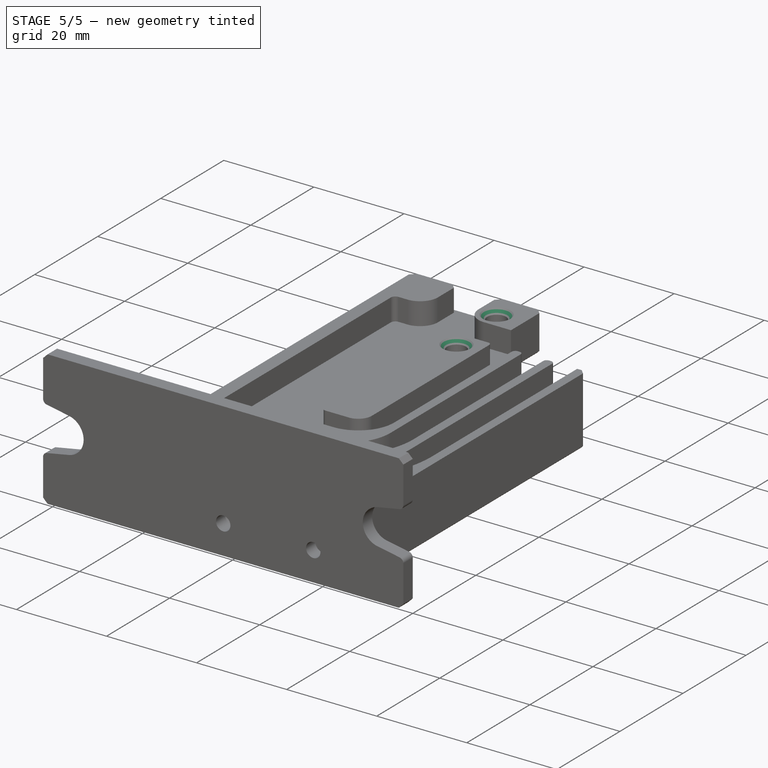
[diagram: stage 5 of 5 — iso view after this stage's code; geometry added in this stage tinted green]
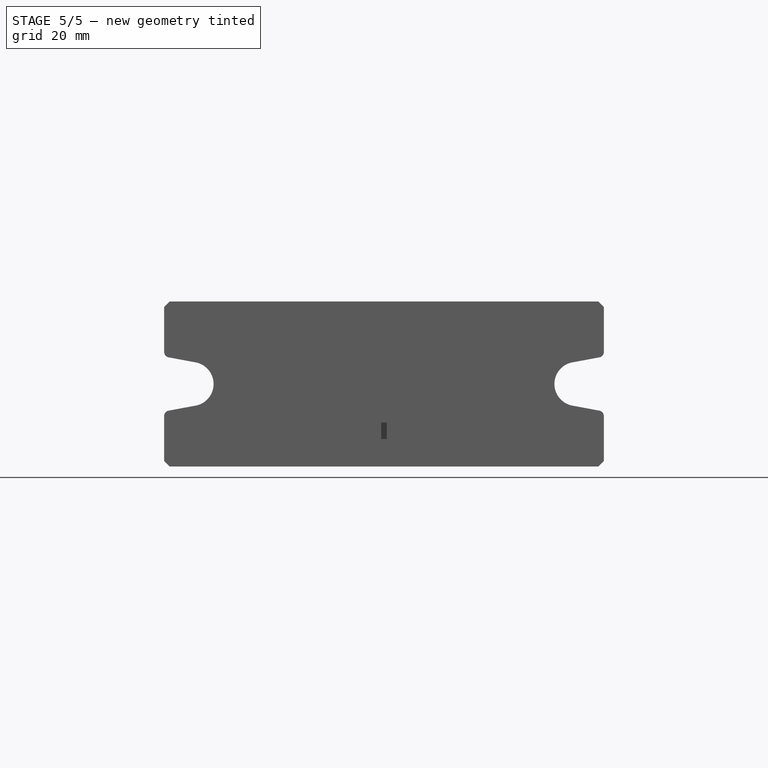
[diagram: stage 5 of 5 — front view after this stage's code; geometry added in this stage tinted green]
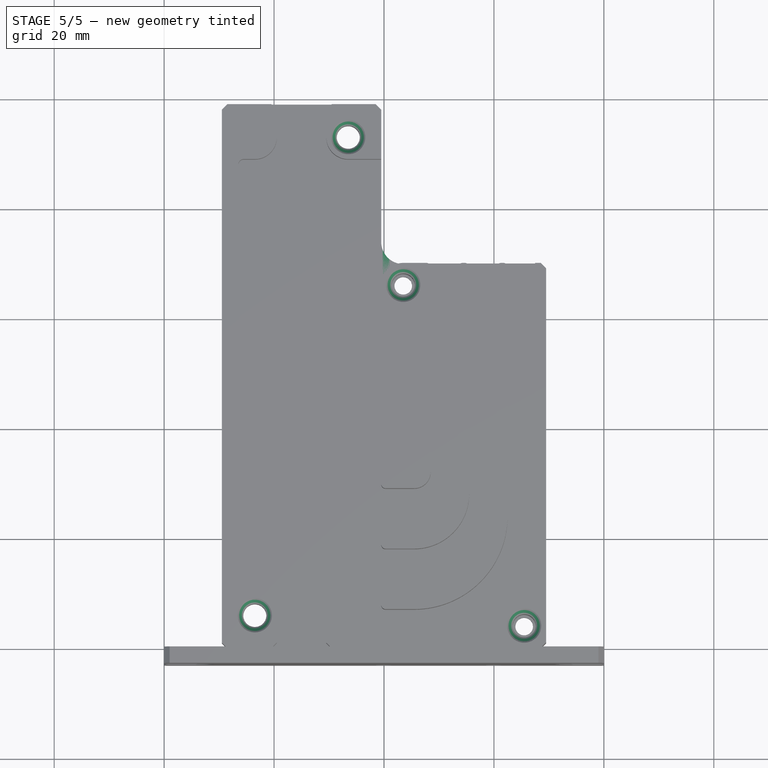
[diagram: stage 5 of 5 — top view after this stage's code; geometry added in this stage tinted green]
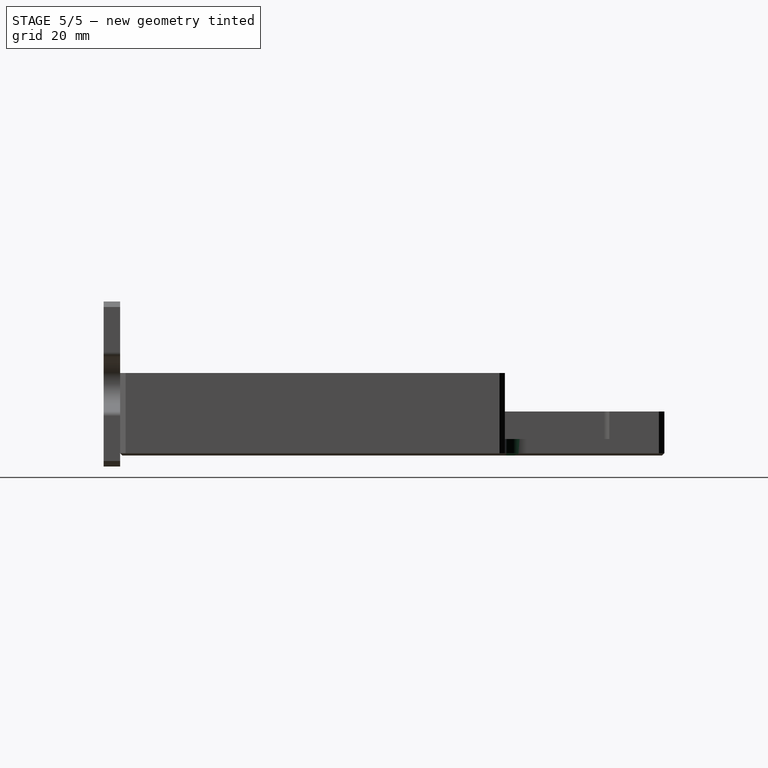
[diagram: stage 5 of 5 — right view after this stage's code; geometry added in this stage tinted green]
FEATURE [PartDesign::Fillet] Fillet002
  AddSubType = 0
  Base = -> Chamfer001 [Edge77]
  BaseFeature = -> Chamfer001
  FixShape = 1
  InvalidShape = false
  NewSolid = false
  Radius = 4
  Refine = true
  SupportTransform = false
  Suppress = false
  TreeRank = 45
  UseAllEdges = false
  ValidateShape = true
FEATURE [PartDesign::Fillet] Fillet003
  AddSubType = 0
  Base = -> Fillet002 [Edge49,Edge53,Edge57,Edge61,Edge58,Edge54,Edge133,Edge137,Edge138,Edge134,Edge130]
  BaseFeature = -> Fillet002
  FixShape = 1
  InvalidShape = false
  NewSolid = false
  Radius = 0.8
  Refine = true
  SupportTransform = false
  Suppress = false
  TreeRank = 46
  UseAllEdges = false
  ValidateShape = true
FEATURE [PartDesign::Chamfer] Chamfer002
  AddSubType = 0
  Angle = 45
  Base = -> Fillet003 [Edge249,Edge33,Edge116,Edge233,Edge105,Edge104]
  BaseFeature = -> Fillet003
  ChamferType = 0
  FixShape = 1
  FlipDirection = false
  InvalidShape = false
  NewSolid = false
  Refine = true
  Size = 1
  Size2 = 1
  SupportTransform = false
  Suppress = false
  TreeRank = 47
  UseAllEdges = false
  ValidateShape = true
FEATURE [PartDesign::Chamfer] Chamfer003
  AddSubType = 0
  Angle = 45
  Base = -> Chamfer002 [Face14]
  BaseFeature = -> Chamfer002
  ChamferType = 0
  FixShape = 1
  FlipDirection = false
  InvalidShape = false
  NewSolid = false
  Refine = true
  Size = 0.4
  Size2 = 1
  SupportTransform = false
  Suppress = false
  TreeRank = 48
  UseAllEdges = false
  ValidateShape = true
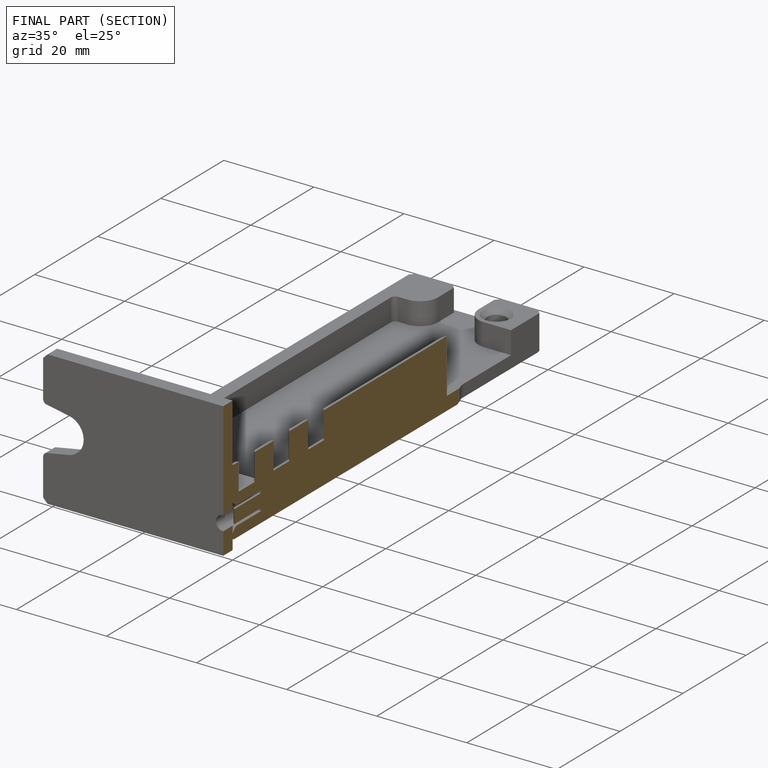
[diagram: finished part — half-section view (interior)]
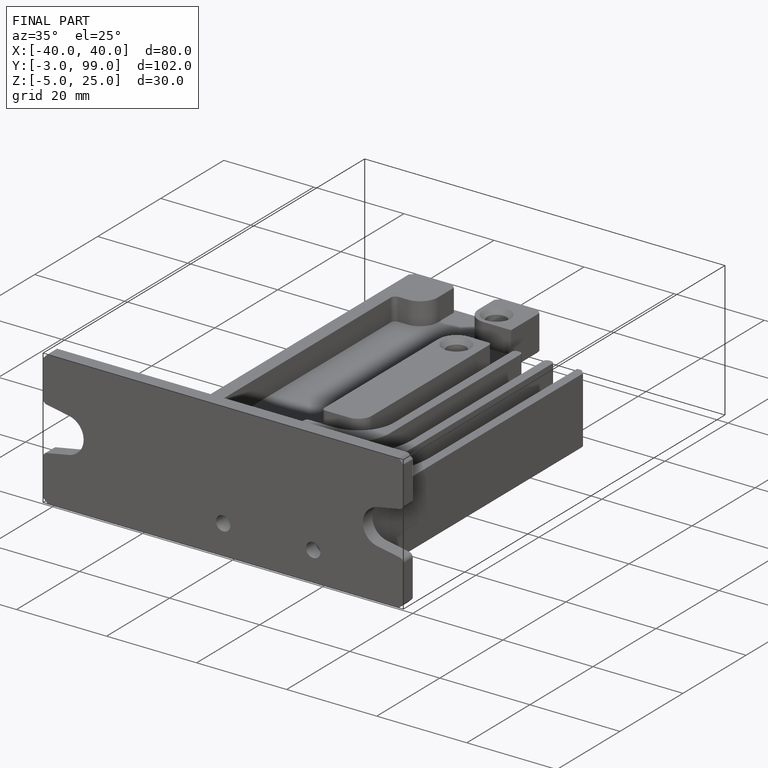
[diagram: finished part — iso view with bounding-box wireframe]
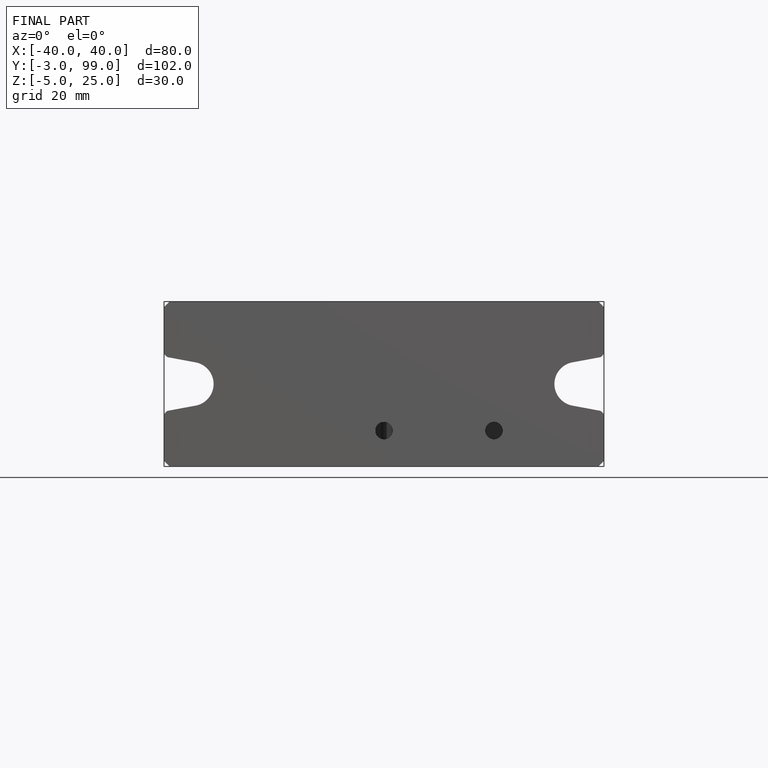
[diagram: finished part — front view with bounding-box wireframe]
